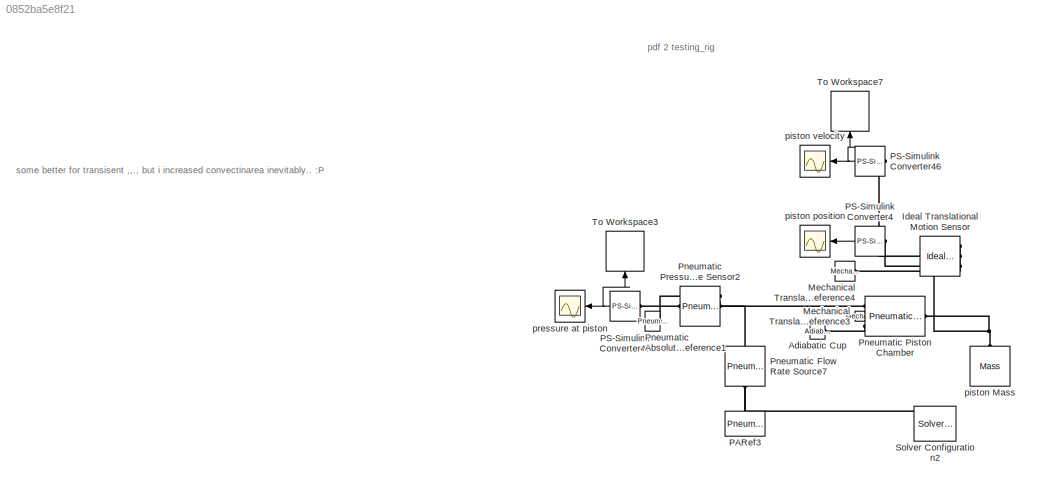
MODEL slx_0852ba5e8f21
KIND model
CONFIG AbsTol = auto
CONFIG FixedStep = auto
CONFIG MaxStep = auto
CONFIG MinStep = auto
CONFIG RelTol = 1e-3
CONFIG SampleTimeConstraint = Unconstrained
CONFIG Solver = VariableStepAuto
CONFIG SolverMode = Auto
CONFIG SolverName = VariableStepAuto
CONFIG StartTime = 0.0
CONFIG StopTime = time
BLOCK [Reference] Adiabatic Cup  REF=fl_lib/Pneumatic/Pneumatic Elements/Adiabatic Cup
  Ports = [0, 0, 0, 0, 0, 1]
  SourceBlock = fl_lib/Pneumatic/Pneumatic Elements/Adiabatic Cup
  SourceType = Adiabatic Cup
BLOCK [Reference] Ideal Translational Motion Sensor  REF=fl_lib/Mechanical/Mechanical Sensors/Ideal Translational
Motion Sensor
  Ports = [0, 0, 0, 0, 0, 1, 3]
  SourceBlock = fl_lib/Mechanical/Mechanical Sensors/Ideal Translational\nMotion Sensor
  SourceType = Ideal Translational\nMotion Sensor
BLOCK [Reference] Mechanical Translational Reference3  REF=fl_lib/Mechanical/Translational
Elements/Mechanical
Translational
Reference
  Ports = [0, 0, 0, 0, 0, 1]
  SourceBlock = fl_lib/Mechanical/Translational\nElements/Mechanical\nTranslational\nReference
  SourceType = Mechanical\nTranslational\nReference
BLOCK [Reference] Mechanical Translational Reference4  REF=fl_lib/Mechanical/Translational
Elements/Mechanical
Translational
Reference
  Ports = [0, 0, 0, 0, 0, 1]
  SourceBlock = fl_lib/Mechanical/Translational\nElements/Mechanical\nTranslational\nReference
  SourceType = Mechanical\nTranslational\nReference
BLOCK [Reference] PARef3  REF=fl_lib/Pneumatic/Pneumatic Elements/Pneumatic
Atmospheric
Reference
  Ports = [0, 0, 0, 0, 0, 1]
  SourceBlock = fl_lib/Pneumatic/Pneumatic Elements/Pneumatic\nAtmospheric\nReference
  SourceType = Pneumatic\nAtmospheric\nReference
BLOCK [Reference] PS-Simulink Converter4  REF=nesl_utility/PS-Simulink
Converter
  Ports = [0, 1, 0, 0, 0, 1]
  SourceBlock = nesl_utility/PS-Simulink\nConverter
  SourceType = PS-Simulink\nConverter
BLOCK [Reference] PS-Simulink Converter46  REF=nesl_utility/PS-Simulink
Converter
  Ports = [0, 1, 0, 0, 0, 1]
  SourceBlock = nesl_utility/PS-Simulink\nConverter
  SourceType = PS-Simulink\nConverter
BLOCK [Reference] PS-Simulink Converter47  REF=nesl_utility/PS-Simulink
Converter
  Ports = [0, 1, 0, 0, 0, 1]
  SourceBlock = nesl_utility/PS-Simulink\nConverter
  SourceType = PS-Simulink\nConverter
BLOCK [Reference] Pneumatic Absolute Reference1  REF=fl_lib/Pneumatic/Pneumatic Elements/Pneumatic Absolute
Reference
  Ports = [0, 0, 0, 0, 0, 1]
  SourceBlock = fl_lib/Pneumatic/Pneumatic Elements/Pneumatic Absolute\nReference
  SourceType = Pneumatic Absolute\nReference
BLOCK [Reference] Pneumatic Flow Rate Source7  REF=fl_lib/Pneumatic/Pneumatic Sources/Pneumatic Flow Rate
Source
  Ports = [0, 0, 0, 0, 0, 1, 1]
  SourceBlock = fl_lib/Pneumatic/Pneumatic Sources/Pneumatic Flow Rate\nSource
  SourceType = Pneumatic Flow Rate\nSource
BLOCK [Reference] Pneumatic Piston Chamber  REF=fl_lib/Pneumatic/Pneumatic Elements/Pneumatic Piston
Chamber
  Ports = [0, 0, 0, 0, 0, 3, 1]
  SourceBlock = fl_lib/Pneumatic/Pneumatic Elements/Pneumatic Piston\nChamber
  SourceType = Pneumatic Piston\nChamber
BLOCK [Reference] Pneumatic Pressure & Temperature Sensor2  REF=fl_lib/Pneumatic/Pneumatic Sensors/Pneumatic Pressure &
Temperature Sensor
  Ports = [0, 0, 0, 0, 0, 1, 3]
  SourceBlock = fl_lib/Pneumatic/Pneumatic Sensors/Pneumatic Pressure &\nTemperature Sensor
  SourceType = Pneumatic Pressure &\nTemperature Sensor
BLOCK [Reference] Solver Configuration2  REF=nesl_utility/Solver
Configuration
  Ports = [0, 0, 0, 0, 0, 0, 1]
  SourceBlock = nesl_utility/Solver\nConfiguration
  SourceType = Solver\nConfiguration
BLOCK [ToWorkspace] To Workspace3
  FixptAsFi = on
  MaxDataPoints = inf
  Ports = [1]
  SampleTime = time_step
  Save2DSignal = 3-D array (concatenate along third dimension)
  SaveFormat = Structure With Time
  VariableName = sim
BLOCK [ToWorkspace] To Workspace7
  FixptAsFi = on
  MaxDataPoints = inf
  Ports = [1]
  SampleTime = time_step
  Save2DSignal = 3-D array (concatenate along third dimension)
  SaveFormat = Structure With Time
  VariableName = sim_vel
BLOCK [Reference] piston Mass  REF=fl_lib/Mechanical/Translational
Elements/Mass
  Ports = [0, 0, 0, 0, 0, 1]
  SourceBlock = fl_lib/Mechanical/Translational\nElements/Mass
  SourceType = Mass
BLOCK [Scope] piston position
  Ports = [1]
  ScopeSpecificationString = C++SS(StrPVP('SaveName','ScopeData1'),StrPVP('LimitDataPoints','on'),StrPVP('DataFormat','Array'),StrPVP('Decimation','1'),StrPVP('BlockParamSampleInput','off'))
BLOCK [Scope] piston velocity
  Ports = [1]
  ScopeSpecificationString = C++SS(StrPVP('SaveName','ScopeData2'),StrPVP('LimitDataPoints','on'),StrPVP('DataFormat','Array'),StrPVP('Decimation','1'),StrPVP('BlockParamSampleInput','off'))
BLOCK [Scope] pressure at piston
  Ports = [1]
  ScopeSpecificationString = C++SS(StrPVP('SaveName','ScopeData3'),StrPVP('LimitDataPoints','on'),StrPVP('DataFormat','Array'),StrPVP('Decimation','1'),StrPVP('BlockParamSampleInput','off'))
ANNOTATION (root): pdf 2 testing_rig
ANNOTATION (root): some better for transisent ,,., but i increased convectinarea inevitably.. :P
NET PS-Simulink Converter46:1 -> To Workspace7:1, piston velocity:1
NET PS-Simulink Converter47:1 -> To Workspace3:1, pressure at piston:1
LINE PS-Simulink Converter4:1 -> piston position:1
PLINE Adiabatic Cup:LConn1 -- Pneumatic Piston Chamber:LConn3
PNET net1: Ideal Translational Motion Sensor:LConn1 -- Pneumatic Piston Chamber:RConn1 -- piston Mass:LConn1
PLINE Ideal Translational Motion Sensor:RConn1 -- Mechanical Translational Reference4:LConn1
PLINE Ideal Translational Motion Sensor:RConn2 -- PS-Simulink Converter46:LConn1
PLINE Ideal Translational Motion Sensor:RConn3 -- PS-Simulink Converter4:LConn1
PLINE Mechanical Translational Reference3:LConn1 -- Pneumatic Piston Chamber:LConn2
PNET net2: PARef3:LConn1 -- Pneumatic Flow Rate Source7:RConn1 -- Solver Configuration2:RConn1
PLINE PS-Simulink Converter47:LConn1 -- Pneumatic Pressure & Temperature Sensor2:RConn2
PLINE Pneumatic Absolute Reference1:LConn1 -- Pneumatic Pressure & Temperature Sensor2:RConn1
PNET net3: Pneumatic Flow Rate Source7:LConn1 -- Pneumatic Piston Chamber:LConn1 -- Pneumatic Pressure & Temperature Sensor2:LConn1
note: NET lines group one-source signal fan-out (src -> all destinations, sorted); 1:1 wires keep LINE; PNET lines group multi-terminal physical nets as a canonical sorted terminal list (undirected conserving connections); 2-terminal nets keep the pairwise PLINE form
